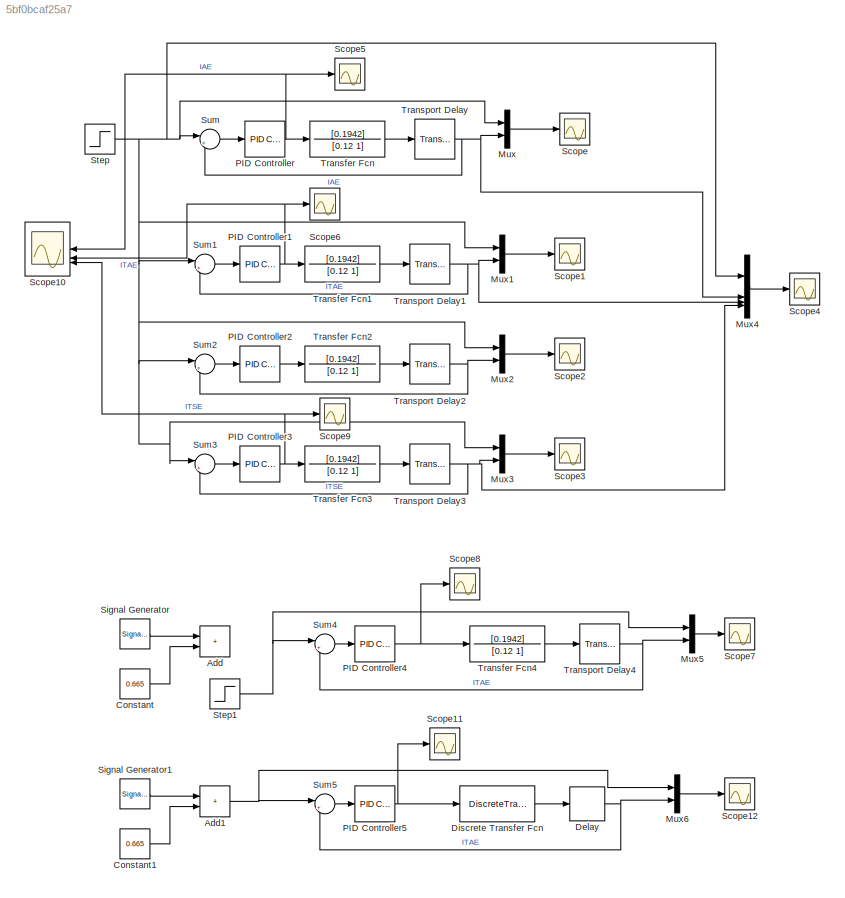
MODEL slx_5bf0bcaf25a7
KIND model
CONFIG AbsTol = auto
CONFIG EnableMultiTasking = off
CONFIG FixedStep = auto
CONFIG MaxStep = auto
CONFIG MinStep = auto
CONFIG RelTol = 1e-3
CONFIG SampleTimeConstraint = Unconstrained
CONFIG SolverName = VariableStepAuto
CONFIG StartTime = 0.0
CONFIG StopTime = 0.6
BLOCK [Sum] Add
  IconShape = rectangular
BLOCK [Sum] Add1
  IconShape = rectangular
BLOCK [Constant] Constant
  Value = 0.665
BLOCK [Constant] Constant1
  Value = 0.665
BLOCK [Delay] Delay
  DelayLength = 1
  InputPortMap = u0
BLOCK [DiscreteTransferFcn] Discrete Transfer Fcn
  Denominator = [1 -0.7165]
  InputPortMap = u0
  Numerator = [0.05504]
BLOCK [Mux] Mux
  DisplayOption = bar
  Inputs = 2
BLOCK [Mux] Mux1
  DisplayOption = bar
  Inputs = 2
BLOCK [Mux] Mux2
  DisplayOption = bar
  Inputs = 2
BLOCK [Mux] Mux3
  DisplayOption = bar
  Inputs = 2
BLOCK [Mux] Mux4
  DisplayOption = bar
BLOCK [Mux] Mux5
  DisplayOption = bar
  Inputs = 2
BLOCK [Mux] Mux6
  DisplayOption = bar
  Inputs = 2
BLOCK [Reference] PID Controller  REF=slpidlib/PID Controller
  LibrarySourceBlock = simulink/Continuous/PID Controller
  SourceBlock = slpidlib/PID Controller
  SourceType = PID 1dof
BLOCK [Reference] PID Controller1  REF=slpidlib/PID Controller
  LibrarySourceBlock = simulink/Continuous/PID Controller
  SourceBlock = slpidlib/PID Controller
  SourceType = PID 1dof
BLOCK [Reference] PID Controller2  REF=slpidlib/PID Controller
  LibrarySourceBlock = simulink/Continuous/PID Controller
  SourceBlock = slpidlib/PID Controller
  SourceType = PID 1dof
BLOCK [Reference] PID Controller3  REF=slpidlib/PID Controller
  LibrarySourceBlock = simulink/Continuous/PID Controller
  SourceBlock = slpidlib/PID Controller
  SourceType = PID 1dof
BLOCK [Reference] PID Controller4  REF=slpidlib/PID Controller
  LibrarySourceBlock = simulink/Continuous/PID Controller
  SourceBlock = slpidlib/PID Controller
  SourceType = PID 1dof
BLOCK [Reference] PID Controller5  REF=slpidlib/PID Controller
  LibrarySourceBlock = simulink/Continuous/PID Controller
  SourceBlock = slpidlib/PID Controller
  SourceType = PID 1dof
BLOCK [Scope] Scope
  Floating = off
  NumInputPorts = 1
  ScopeSpecificationString = Simulink.scopes.TimeScopeBlockCfg('CurrentConfiguration', extmgr.ConfigurationSet(extmgr.Configuration('Core','General UI',true),extmgr.Configuration('Core','Source UI',true),extmgr.Configuration('Sources','WiredSimulink',true),extmgr.Configuration('Visuals','Time Domain',true,'SerializedDisplays',{struct('MinYLimReal','-0.18138','MaxYLimReal','1.6324','YLabelReal','','MinYLimMag','0.00000','MaxYL...<+1353ch>
BLOCK [Scope] Scope1
  Floating = off
  NumInputPorts = 1
  ScopeSpecificationString = Simulink.scopes.TimeScopeBlockCfg('CurrentConfiguration', extmgr.ConfigurationSet(extmgr.Configuration('Core','General UI',true),extmgr.Configuration('Core','Source UI',true),extmgr.Configuration('Sources','WiredSimulink',true,'DataLoggingVariableName','ScopeData1'),extmgr.Configuration('Visuals','Time Domain',true,'SerializedDisplays',{struct('MinYLimReal','-31.875','MaxYLimReal','286.875','YLabe...<+1395ch>
BLOCK [Scope] Scope10
  Floating = off
  NumInputPorts = 3
  ScopeSpecificationString = Simulink.scopes.TimeScopeBlockCfg('CurrentConfiguration', extmgr.ConfigurationSet(extmgr.Configuration('Core','General UI',true),extmgr.Configuration('Core','Source UI',true),extmgr.Configuration('Sources','WiredSimulink',true,'DataLoggingVariableName','ScopeData1'),extmgr.Configuration('Visuals','Time Domain',true,'SerializedDisplays',{struct('MinYLimReal','-11.689','MaxYLimReal','58.82347','YLab...<+1405ch>
BLOCK [Scope] Scope11
  Floating = off
  NumInputPorts = 1
  ScopeSpecificationString = Simulink.scopes.TimeScopeBlockCfg('CurrentConfiguration', extmgr.ConfigurationSet(extmgr.Configuration('Core','General UI',true),extmgr.Configuration('Core','Source UI',true),extmgr.Configuration('Sources','WiredSimulink',true,'DataLoggingVariableName','ScopeData1'),extmgr.Configuration('Visuals','Time Domain',true,'SerializedDisplays',{struct('MinYLimReal','-1.00000','MaxYLimReal','1.00000','YLab...<+1401ch>
BLOCK [Scope] Scope12
  Floating = off
  NumInputPorts = 1
  ScopeSpecificationString = Simulink.scopes.TimeScopeBlockCfg('CurrentConfiguration', extmgr.ConfigurationSet(extmgr.Configuration('Core','General UI',true),extmgr.Configuration('Core','Source UI',true),extmgr.Configuration('Sources','WiredSimulink',true,'DataLoggingVariableName','ScopeData2'),extmgr.Configuration('Visuals','Time Domain',true,'SerializedDisplays',{struct('MinYLimReal','-1.00000','MaxYLimReal','1.00000','YLab...<+1397ch>
BLOCK [Scope] Scope2
  Floating = off
  NumInputPorts = 1
  ScopeSpecificationString = Simulink.scopes.TimeScopeBlockCfg('CurrentConfiguration', extmgr.ConfigurationSet(extmgr.Configuration('Core','General UI',true),extmgr.Configuration('Core','Source UI',true),extmgr.Configuration('Sources','WiredSimulink',true,'DataLoggingVariableName','ScopeData2'),extmgr.Configuration('Visuals','Time Domain',true,'SerializedDisplays',{struct('MinYLimReal','-1288.84734','MaxYLimReal','751.10563',...<+1402ch>
BLOCK [Scope] Scope3
  Floating = off
  NumInputPorts = 1
  ScopeSpecificationString = Simulink.scopes.TimeScopeBlockCfg('CurrentConfiguration', extmgr.ConfigurationSet(extmgr.Configuration('Core','General UI',true),extmgr.Configuration('Core','Source UI',true),extmgr.Configuration('Sources','WiredSimulink',true,'DataLoggingVariableName','ScopeData3'),extmgr.Configuration('Visuals','Time Domain',true,'SerializedDisplays',{struct('MinYLimReal','-0.18152','MaxYLimReal','1.63372','YLab...<+1395ch>
BLOCK [Scope] Scope4
  Floating = off
  NumInputPorts = 1
  ScopeSpecificationString = Simulink.scopes.TimeScopeBlockCfg('CurrentConfiguration', extmgr.ConfigurationSet(extmgr.Configuration('Core','General UI',true),extmgr.Configuration('Core','Source UI',true),extmgr.Configuration('Sources','WiredSimulink',true,'DataLoggingVariableName','ScopeData4'),extmgr.Configuration('Visuals','Time Domain',true,'SerializedDisplays',{struct('MinYLimReal','-0.21495','MaxYLimReal','1.93456','YLab...<+1410ch>
BLOCK [Scope] Scope5
  Floating = off
  NumInputPorts = 1
  ScopeSpecificationString = Simulink.scopes.TimeScopeBlockCfg('CurrentConfiguration', extmgr.ConfigurationSet(extmgr.Configuration('Core','General UI',true),extmgr.Configuration('Core','Source UI',true),extmgr.Configuration('Sources','WiredSimulink',true,'DataLoggingVariableName','ScopeData5'),extmgr.Configuration('Visuals','Time Domain',true,'SerializedDisplays',{struct('MinYLimReal','-13.3401','MaxYLimReal','55.80617','YLa...<+1404ch>
BLOCK [Scope] Scope6
  Floating = off
  NumInputPorts = 1
  ScopeSpecificationString = Simulink.scopes.TimeScopeBlockCfg('CurrentConfiguration', extmgr.ConfigurationSet(extmgr.Configuration('Core','General UI',true),extmgr.Configuration('Core','Source UI',true),extmgr.Configuration('Sources','WiredSimulink',true,'DataLoggingVariableName','ScopeData6'),extmgr.Configuration('Visuals','Time Domain',true,'SerializedDisplays',{struct('MinYLimReal','-6.73334','MaxYLimReal','44.32272','YLa...<+1405ch>
BLOCK [Scope] Scope7
  Floating = off
  NumInputPorts = 1
  ScopeSpecificationString = Simulink.scopes.TimeScopeBlockCfg('CurrentConfiguration', extmgr.ConfigurationSet(extmgr.Configuration('Core','General UI',true),extmgr.Configuration('Core','Source UI',true),extmgr.Configuration('Sources','WiredSimulink',true,'DataLoggingVariableName','ScopeData7'),extmgr.Configuration('Visuals','Time Domain',true,'SerializedDisplays',{struct('MinYLimReal','-0.17953','MaxYLimReal','1.61573','YLab...<+1398ch>
BLOCK [Scope] Scope8
  Floating = off
  NumInputPorts = 1
  ScopeSpecificationString = Simulink.scopes.TimeScopeBlockCfg('CurrentConfiguration', extmgr.ConfigurationSet(extmgr.Configuration('Core','General UI',true),extmgr.Configuration('Core','Source UI',true),extmgr.Configuration('Sources','WiredSimulink',true,'DataLoggingVariableName','ScopeData8'),extmgr.Configuration('Visuals','Time Domain',true,'SerializedDisplays',{struct('MinYLimReal','-4.79157','MaxYLimReal','43.12409','YLa...<+1405ch>
BLOCK [Scope] Scope9
  Floating = off
  NumInputPorts = 1
  ScopeSpecificationString = Simulink.scopes.TimeScopeBlockCfg('CurrentConfiguration', extmgr.ConfigurationSet(extmgr.Configuration('Core','General UI',true),extmgr.Configuration('Core','Source UI',true),extmgr.Configuration('Sources','WiredSimulink',true,'DataLoggingVariableName','ScopeData9'),extmgr.Configuration('Visuals','Time Domain',true,'SerializedDisplays',{struct('MinYLimReal','-14.71656','MaxYLimReal','59.15987','YL...<+1407ch>
BLOCK [SignalGenerator] Signal Generator
  Amplitude = 0.665
  Frequency = 0.05
  WaveForm = square
BLOCK [SignalGenerator] Signal Generator1
  Amplitude = 0.665
  Frequency = 0.02
  WaveForm = square
BLOCK [Step] Step
  After = 1.33
  SampleTime = 0
  Time = 0.1
BLOCK [Step] Step1
  After = 1.3
  SampleTime = 0
  Time = 0.1
BLOCK [Sum] Sum
  Inputs = |+-
BLOCK [Sum] Sum1
  Inputs = |+-
BLOCK [Sum] Sum2
  Inputs = |+-
BLOCK [Sum] Sum3
  Inputs = |+-
BLOCK [Sum] Sum4
  Inputs = |+-
BLOCK [Sum] Sum5
  Inputs = |+-
BLOCK [TransferFcn] Transfer Fcn
  Denominator = [0.12 1]
  Numerator = [0.1942]
BLOCK [TransferFcn] Transfer Fcn1
  Denominator = [0.12 1]
  Numerator = [0.1942]
BLOCK [TransferFcn] Transfer Fcn2
  Denominator = [0.12 1]
  Numerator = [0.1942]
BLOCK [TransferFcn] Transfer Fcn3
  Denominator = [0.12 1]
  Numerator = [0.1942]
BLOCK [TransferFcn] Transfer Fcn4
  Denominator = [0.12 1]
  Numerator = [0.1942]
BLOCK [TransportDelay] Transport Delay
  DelayTime = 0.04
BLOCK [TransportDelay] Transport Delay1
  DelayTime = 0.04
BLOCK [TransportDelay] Transport Delay2
  DelayTime = 0.04
BLOCK [TransportDelay] Transport Delay3
  DelayTime = 0.04
BLOCK [TransportDelay] Transport Delay4
  DelayTime = 0.04
NET Add1:1 -> Mux6:1, Sum5:1
LINE Constant1:1 -> Add1:2
LINE Constant:1 -> Add:2
NET Delay:1 -> Mux6:2, Sum5:2
LINE Discrete Transfer Fcn:1 -> Delay:1
LINE Mux1:1 -> Scope1:1
LINE Mux2:1 -> Scope2:1
LINE Mux3:1 -> Scope3:1
LINE Mux4:1 -> Scope4:1
LINE Mux5:1 -> Scope7:1
LINE Mux6:1 -> Scope12:1
LINE Mux:1 -> Scope:1
NET PID Controller1:1 -> Scope10:2, Scope6:1, Transfer Fcn1:1
LINE PID Controller2:1 -> Transfer Fcn2:1
NET PID Controller3:1 -> Scope10:3, Scope9:1, Transfer Fcn3:1
NET PID Controller4:1 -> Scope8:1, Transfer Fcn4:1
NET PID Controller5:1 -> Discrete Transfer Fcn:1, Scope11:1
NET PID Controller:1 -> Scope10:1, Scope5:1, Transfer Fcn:1
LINE Signal Generator1:1 -> Add1:1
LINE Signal Generator:1 -> Add:1
NET Step1:1 -> Mux5:1, Sum4:1
NET Step:1 -> Mux1:1, Mux2:1, Mux3:1, Mux4:1, Mux:1, Sum1:1, Sum2:1, Sum3:1, Sum:1
LINE Sum1:1 -> PID Controller1:1
LINE Sum2:1 -> PID Controller2:1
LINE Sum3:1 -> PID Controller3:1
LINE Sum4:1 -> PID Controller4:1
LINE Sum5:1 -> PID Controller5:1
LINE Sum:1 -> PID Controller:1
LINE Transfer Fcn1:1 -> Transport Delay1:1
LINE Transfer Fcn2:1 -> Transport Delay2:1
LINE Transfer Fcn3:1 -> Transport Delay3:1
LINE Transfer Fcn4:1 -> Transport Delay4:1
LINE Transfer Fcn:1 -> Transport Delay:1
NET Transport Delay1:1 -> Mux1:2, Mux4:3, Sum1:2
NET Transport Delay2:1 -> Mux2:2, Sum2:2
NET Transport Delay3:1 -> Mux3:2, Mux4:4, Sum3:2
NET Transport Delay4:1 -> Mux5:2, Sum4:2
NET Transport Delay:1 -> Mux4:2, Mux:2, Sum:2
note: NET lines group one-source signal fan-out (src -> all destinations, sorted); 1:1 wires keep LINE
